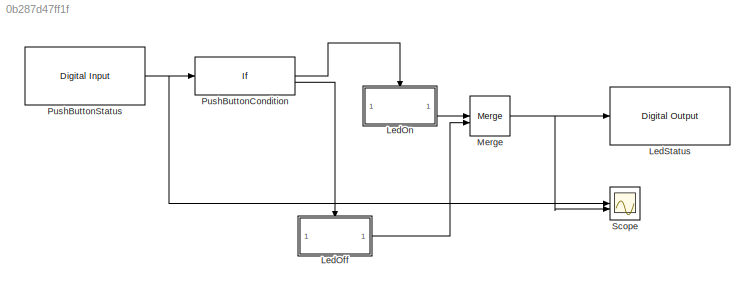
MODEL slx_0b287d47ff1f
KIND model
CONFIG AbsTol = auto
CONFIG EnableMultiTasking = on
CONFIG FixedStep = 1e-3
CONFIG MaxStep = auto
CONFIG MinStep = auto
CONFIG RelTol = 1e-3
CONFIG SampleTimeConstraint = Unconstrained
CONFIG SolverName = FixedStepDiscrete
CONFIG StartTime = 0.0
CONFIG StopTime = inf
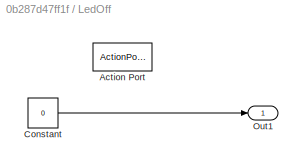
BLOCK [SubSystem] LedOff
  TreatAsAtomicUnit = on
BLOCK [ActionPort] LedOff/Action Port
  ActionPortLabel = else
BLOCK [Constant] LedOff/Constant
  OutDataTypeStr = boolean
  Value = 0
BLOCK [Outport] LedOff/Out1
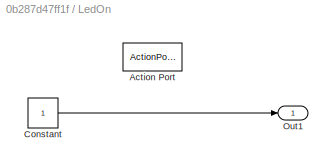
BLOCK [SubSystem] LedOn
  TreatAsAtomicUnit = on
BLOCK [ActionPort] LedOn/Action Port
  ActionPortLabel = if(u1 ==1)
BLOCK [Constant] LedOn/Constant
  OutDataTypeStr = boolean
BLOCK [Outport] LedOn/Out1
BLOCK [Reference] LedStatus  REF=arduinolib/Digital Output
  SourceBlock = arduinolib/Digital Output
  SourceType = Arduino Digital Output
BLOCK [Merge] Merge
BLOCK [If] PushButtonCondition
  IfExpression = u1 ==1
BLOCK [Reference] PushButtonStatus  REF=arduinolib/Digital Input
  SourceBlock = arduinolib/Digital Input
  SourceType = Arduino Digital Input
BLOCK [Scope] Scope
  Floating = off
  NumInputPorts = 2
  ScopeSpecificationString = Simulink.scopes.TimeScopeBlockCfg('CurrentConfiguration', extmgr.ConfigurationSet(extmgr.Configuration('Core','General UI',true),extmgr.Configuration('Core','Source UI',true),extmgr.Configuration('Sources','WiredSimulink',true),extmgr.Configuration('Visuals','Time Domain',true,'SerializedDisplays',{struct('MinYLimReal','-1.00000','MaxYLimReal','1.00000','YLabelReal','','MinYLimMag','0.00000','MaxY...<+2209ch>
LINE LedOff/Constant:1 -> LedOff/Out1:1
LINE LedOff:1 -> Merge:2
LINE LedOn/Constant:1 -> LedOn/Out1:1
LINE LedOn:1 -> Merge:1
NET Merge:1 -> LedStatus:1, Scope:2
LINE PushButtonCondition:1 -> LedOn:ifaction
LINE PushButtonCondition:2 -> LedOff:ifaction
NET PushButtonStatus:1 -> PushButtonCondition:1, Scope:1
note: NET lines group one-source signal fan-out (src -> all destinations, sorted); 1:1 wires keep LINE
